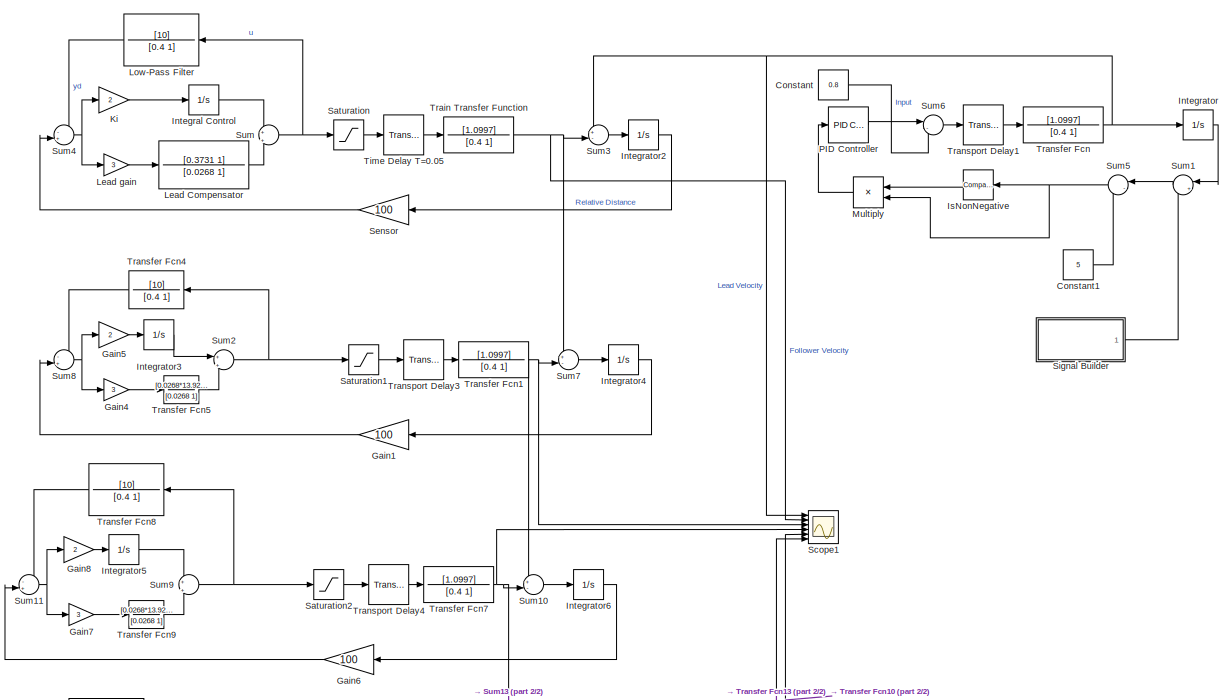
[diagram: root canvas - part 1/2, full width, top band]
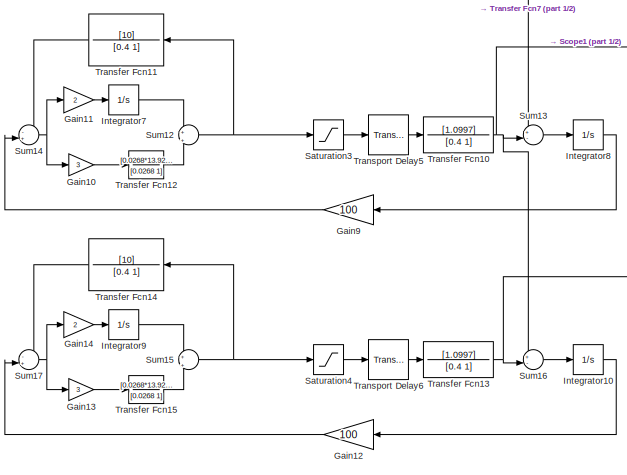
[diagram: root canvas - part 2/2, bottom left region]
MODEL slx_5588f0d19503
KIND model
CONFIG AbsTol = auto
CONFIG EnableMultiTasking = off
CONFIG FixedStep = 1e-6
CONFIG MaxStep = auto
CONFIG MinStep = auto
CONFIG RelTol = 1e-3
CONFIG SampleTimeConstraint = Unconstrained
CONFIG Solver = VariableStepAuto
CONFIG SolverName = VariableStepAuto
CONFIG StartTime = 0.0
CONFIG StopTime = 10
BLOCK [Constant] Constant
  Value = 0.8
BLOCK [Constant] Constant1
  Value = 5
BLOCK [Gain] Gain1
  Gain = 100
  OutDataTypeStr = Inherit: Inherit via internal rule
  ParamDataTypeStr = Inherit: Inherit via internal rule
  SaturateOnIntegerOverflow = off
BLOCK [Gain] Gain10
  Gain = 3
  OutDataTypeStr = Inherit: Inherit via internal rule
  ParamDataTypeStr = Inherit: Inherit via internal rule
  SaturateOnIntegerOverflow = off
BLOCK [Gain] Gain11
  Gain = 2
  OutDataTypeStr = Inherit: Inherit via internal rule
  ParamDataTypeStr = Inherit: Inherit via internal rule
  SaturateOnIntegerOverflow = off
BLOCK [Gain] Gain12
  Gain = 100
  OutDataTypeStr = Inherit: Inherit via internal rule
  ParamDataTypeStr = Inherit: Inherit via internal rule
  SaturateOnIntegerOverflow = off
BLOCK [Gain] Gain13
  Gain = 3
  OutDataTypeStr = Inherit: Inherit via internal rule
  ParamDataTypeStr = Inherit: Inherit via internal rule
  SaturateOnIntegerOverflow = off
BLOCK [Gain] Gain14
  Gain = 2
  OutDataTypeStr = Inherit: Inherit via internal rule
  ParamDataTypeStr = Inherit: Inherit via internal rule
  SaturateOnIntegerOverflow = off
BLOCK [Gain] Gain4
  Gain = 3
  OutDataTypeStr = Inherit: Inherit via internal rule
  ParamDataTypeStr = Inherit: Inherit via internal rule
  SaturateOnIntegerOverflow = off
BLOCK [Gain] Gain5
  Gain = 2
  OutDataTypeStr = Inherit: Inherit via internal rule
  ParamDataTypeStr = Inherit: Inherit via internal rule
  SaturateOnIntegerOverflow = off
BLOCK [Gain] Gain6
  Gain = 100
  OutDataTypeStr = Inherit: Inherit via internal rule
  ParamDataTypeStr = Inherit: Inherit via internal rule
  SaturateOnIntegerOverflow = off
BLOCK [Gain] Gain7
  Gain = 3
  OutDataTypeStr = Inherit: Inherit via internal rule
  ParamDataTypeStr = Inherit: Inherit via internal rule
  SaturateOnIntegerOverflow = off
BLOCK [Gain] Gain8
  Gain = 2
  OutDataTypeStr = Inherit: Inherit via internal rule
  ParamDataTypeStr = Inherit: Inherit via internal rule
  SaturateOnIntegerOverflow = off
BLOCK [Gain] Gain9
  Gain = 100
  OutDataTypeStr = Inherit: Inherit via internal rule
  ParamDataTypeStr = Inherit: Inherit via internal rule
  SaturateOnIntegerOverflow = off
BLOCK [Integrator] Integral Control
  Ports = [1, 1]
BLOCK [Integrator] Integrator
  Ports = [1, 1]
BLOCK [Integrator] Integrator10
  Ports = [1, 1]
BLOCK [Integrator] Integrator2
  Ports = [1, 1]
BLOCK [Integrator] Integrator3
  Ports = [1, 1]
BLOCK [Integrator] Integrator4
  Ports = [1, 1]
BLOCK [Integrator] Integrator5
  Ports = [1, 1]
BLOCK [Integrator] Integrator6
  Ports = [1, 1]
BLOCK [Integrator] Integrator7
  Ports = [1, 1]
BLOCK [Integrator] Integrator8
  Ports = [1, 1]
BLOCK [Integrator] Integrator9
  Ports = [1, 1]
BLOCK [Reference] IsNonNegative  REF=simulink/Logic and Bit
Operations/Compare
To Zero
  Ports = [1, 1]
  SourceBlock = simulink/Logic and Bit\nOperations/Compare\nTo Zero
  SourceProductBaseCode = SL
  SourceProductName = Simulink
  SourceType = Compare To Zero
BLOCK [Gain] Ki
  Gain = 2
  OutDataTypeStr = Inherit: Inherit via internal rule
  ParamDataTypeStr = Inherit: Inherit via internal rule
  SaturateOnIntegerOverflow = off
BLOCK [TransferFcn] Lead Compensator
  Denominator = [0.0268 1]
  Numerator = [0.3731 1]
BLOCK [Gain] Lead gain
  Gain = 3
  OutDataTypeStr = Inherit: Inherit via internal rule
  ParamDataTypeStr = Inherit: Inherit via internal rule
  SaturateOnIntegerOverflow = off
BLOCK [TransferFcn] Low-Pass Filter
  Denominator = [0.4 1]
  Numerator = [10]
BLOCK [Product] Multiply
  InputSameDT = off
  OutDataTypeStr = Inherit: Inherit via internal rule
  Ports = [2, 1]
  RndMeth = Floor
  SaturateOnIntegerOverflow = off
BLOCK [Reference] PID Controller  REF=simulink/Continuous/PID Controller
  Ports = [1, 1]
  SourceBlock = simulink/Continuous/PID Controller
  SourceProductBaseCode = SL
  SourceProductName = Simulink
  SourceType = PID 1dof
BLOCK [Saturate] Saturation
  InputPortMap = u0
  LowerLimit = 0
  Ports = [1, 1]
  UpperLimit = 1
BLOCK [Saturate] Saturation1
  InputPortMap = u0
  LowerLimit = 0
  Ports = [1, 1]
  UpperLimit = 1
BLOCK [Saturate] Saturation2
  InputPortMap = u0
  LowerLimit = 0
  Ports = [1, 1]
  UpperLimit = 1
BLOCK [Saturate] Saturation3
  InputPortMap = u0
  LowerLimit = 0
  Ports = [1, 1]
  UpperLimit = 1
BLOCK [Saturate] Saturation4
  InputPortMap = u0
  LowerLimit = 0
  Ports = [1, 1]
  UpperLimit = 1
BLOCK [Scope] Scope1
  Floating = off
  NumInputPorts = 6
  Ports = [6]
  ScopeSpecificationString = Simulink.scopes.TimeScopeBlockCfg('CurrentConfiguration', extmgr.ConfigurationSet(extmgr.Configuration('Core','General UI',true),extmgr.Configuration('Core','Source UI',true),extmgr.Configuration('Sources','WiredSimulink',true,'DataLoggingVariableName','ScopeData1','DataLogging',true),extmgr.Configuration('Visuals','Time Domain',true,'SerializedDisplays',{struct('MinYLimReal','-0.10997','MaxYLimRe...<+1504ch>
BLOCK [Gain] Sensor
  Gain = 100
  OutDataTypeStr = Inherit: Inherit via internal rule
  ParamDataTypeStr = Inherit: Inherit via internal rule
  SaturateOnIntegerOverflow = off
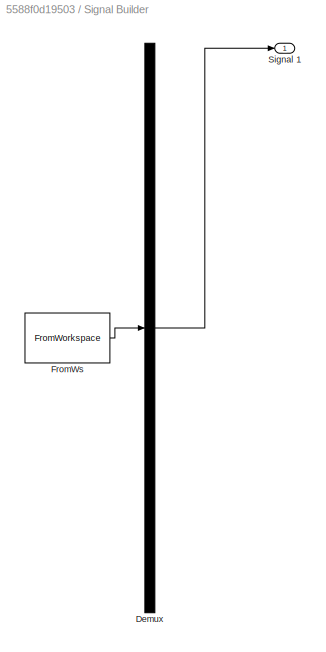
BLOCK [SubSystem] Signal Builder
  ClipboardFcn = sigbuilder_block('clipboard');
  CloseFcn = sigbuilder_block('close');
  ContinueFcn = sigbuilder_block('continue');
  CopyFcn = sigbuilder_block('copy');
  DeleteFcn = sigbuilder_block('delete');
  LoadFcn = sigbuilder_block('load',[242.25 90 550.5 359.25 ]);
  MaskHideContents = on
  ModelCloseFcn = sigbuilder_block('modelClose');
  NameChangeFcn = sigbuilder_block('namechange');
  OpenFcn = sigbuilder_block('open',[242.25 90 550.5 359.25 ]);
  PauseFcn = sigbuilder_block('pause');
  Ports = [0, 1]
  PreSaveFcn = sigbuilder_block('preSave');
  RequestExecContextInheritance = off
  StartFcn = sigbuilder_block('start');
  StopFcn = sigbuilder_block('stop');
  Tag = STV Subsys
BLOCK [Demux] Signal Builder/Demux
  Outputs = 1
  Ports = [1, 1]
  Tag = STV Demux
BLOCK [FromWorkspace] Signal Builder/FromWs
  SampleTime = 0
  Tag = STV FromWs
  VariableName = tuvar
  ZeroCross = on
BLOCK [Outport] Signal Builder/Signal 1
  IconDisplay = Port number
  Tag = STV Outport
BLOCK [Sum] Sum
  IconShape = round
  InputSameDT = off
  Inputs = +|+
  OutDataTypeStr = Inherit: Inherit via internal rule
  Ports = [2, 1]
  SaturateOnIntegerOverflow = off
BLOCK [Sum] Sum1
  IconShape = round
  InputSameDT = off
  Inputs = |++
  OutDataTypeStr = Inherit: Inherit via internal rule
  Ports = [2, 1]
  SaturateOnIntegerOverflow = off
BLOCK [Sum] Sum10
  IconShape = round
  InputSameDT = off
  Inputs = +-|
  OutDataTypeStr = Inherit: Inherit via internal rule
  Ports = [2, 1]
  SaturateOnIntegerOverflow = off
BLOCK [Sum] Sum11
  IconShape = round
  InputSameDT = off
  Inputs = -+|
  OutDataTypeStr = Inherit: Inherit via internal rule
  Ports = [2, 1]
  SaturateOnIntegerOverflow = off
BLOCK [Sum] Sum12
  IconShape = round
  InputSameDT = off
  Inputs = +|+
  OutDataTypeStr = Inherit: Inherit via internal rule
  Ports = [2, 1]
  SaturateOnIntegerOverflow = off
BLOCK [Sum] Sum13
  IconShape = round
  InputSameDT = off
  Inputs = +-|
  OutDataTypeStr = Inherit: Inherit via internal rule
  Ports = [2, 1]
  SaturateOnIntegerOverflow = off
BLOCK [Sum] Sum14
  IconShape = round
  InputSameDT = off
  Inputs = -+|
  OutDataTypeStr = Inherit: Inherit via internal rule
  Ports = [2, 1]
  SaturateOnIntegerOverflow = off
BLOCK [Sum] Sum15
  IconShape = round
  InputSameDT = off
  Inputs = +|+
  OutDataTypeStr = Inherit: Inherit via internal rule
  Ports = [2, 1]
  SaturateOnIntegerOverflow = off
BLOCK [Sum] Sum16
  IconShape = round
  InputSameDT = off
  Inputs = +-|
  OutDataTypeStr = Inherit: Inherit via internal rule
  Ports = [2, 1]
  SaturateOnIntegerOverflow = off
BLOCK [Sum] Sum17
  IconShape = round
  InputSameDT = off
  Inputs = -+|
  OutDataTypeStr = Inherit: Inherit via internal rule
  Ports = [2, 1]
  SaturateOnIntegerOverflow = off
BLOCK [Sum] Sum2
  IconShape = round
  InputSameDT = off
  Inputs = +|+
  OutDataTypeStr = Inherit: Inherit via internal rule
  Ports = [2, 1]
  SaturateOnIntegerOverflow = off
BLOCK [Sum] Sum3
  IconShape = round
  InputSameDT = off
  Inputs = +-|
  OutDataTypeStr = Inherit: Inherit via internal rule
  Ports = [2, 1]
  SaturateOnIntegerOverflow = off
BLOCK [Sum] Sum4
  IconShape = round
  InputSameDT = off
  Inputs = -+|
  OutDataTypeStr = Inherit: Inherit via internal rule
  Ports = [2, 1]
  SaturateOnIntegerOverflow = off
BLOCK [Sum] Sum5
  IconShape = round
  InputSameDT = off
  Inputs = |-+
  OutDataTypeStr = Inherit: Inherit via internal rule
  Ports = [2, 1]
  SaturateOnIntegerOverflow = off
BLOCK [Sum] Sum6
  IconShape = round
  InputSameDT = off
  Inputs = |-+
  OutDataTypeStr = Inherit: Inherit via internal rule
  Ports = [2, 1]
  SaturateOnIntegerOverflow = off
BLOCK [Sum] Sum7
  IconShape = round
  InputSameDT = off
  Inputs = +-|
  OutDataTypeStr = Inherit: Inherit via internal rule
  Ports = [2, 1]
  SaturateOnIntegerOverflow = off
BLOCK [Sum] Sum8
  IconShape = round
  InputSameDT = off
  Inputs = -+|
  OutDataTypeStr = Inherit: Inherit via internal rule
  Ports = [2, 1]
  SaturateOnIntegerOverflow = off
BLOCK [Sum] Sum9
  IconShape = round
  InputSameDT = off
  Inputs = +|+
  OutDataTypeStr = Inherit: Inherit via internal rule
  Ports = [2, 1]
  SaturateOnIntegerOverflow = off
BLOCK [TransportDelay] Time Delay T=0.05
  DelayTime = 0.05
  PadeOrder = 3
  Ports = [1, 1]
BLOCK [TransferFcn] Train Transfer Function
  Denominator = [0.4 1]
  Numerator = [1.0997]
BLOCK [TransferFcn] Transfer Fcn
  Denominator = [0.4 1]
  Numerator = [1.0997]
BLOCK [TransferFcn] Transfer Fcn1
  Denominator = [0.4 1]
  Numerator = [1.0997]
BLOCK [TransferFcn] Transfer Fcn10
  Denominator = [0.4 1]
  Numerator = [1.0997]
BLOCK [TransferFcn] Transfer Fcn11
  Denominator = [0.4 1]
  Numerator = [10]
BLOCK [TransferFcn] Transfer Fcn12
  Denominator = [0.0268 1]
  Numerator = [0.0268*13.92 1]
BLOCK [TransferFcn] Transfer Fcn13
  Denominator = [0.4 1]
  Numerator = [1.0997]
BLOCK [TransferFcn] Transfer Fcn14
  Denominator = [0.4 1]
  Numerator = [10]
BLOCK [TransferFcn] Transfer Fcn15
  Denominator = [0.0268 1]
  Numerator = [0.0268*13.92 1]
BLOCK [TransferFcn] Transfer Fcn4
  Denominator = [0.4 1]
  Numerator = [10]
BLOCK [TransferFcn] Transfer Fcn5
  Denominator = [0.0268 1]
  Numerator = [0.0268*13.92 1]
BLOCK [TransferFcn] Transfer Fcn7
  Denominator = [0.4 1]
  Numerator = [1.0997]
BLOCK [TransferFcn] Transfer Fcn8
  Denominator = [0.4 1]
  Numerator = [10]
BLOCK [TransferFcn] Transfer Fcn9
  Denominator = [0.0268 1]
  Numerator = [0.0268*13.92 1]
BLOCK [TransportDelay] Transport Delay1
  DelayTime = 0.05
  PadeOrder = 3
  Ports = [1, 1]
BLOCK [TransportDelay] Transport Delay3
  DelayTime = 0.05
  PadeOrder = 3
  Ports = [1, 1]
BLOCK [TransportDelay] Transport Delay4
  DelayTime = 0.05
  PadeOrder = 3
  Ports = [1, 1]
BLOCK [TransportDelay] Transport Delay5
  DelayTime = 0.05
  PadeOrder = 3
  Ports = [1, 1]
BLOCK [TransportDelay] Transport Delay6
  DelayTime = 0.05
  PadeOrder = 3
  Ports = [1, 1]
LINE Constant1:1 -> Sum5:2
LINE Constant:1 -> Sum6:2
LINE Gain10:1 -> Transfer Fcn12:1
LINE Gain11:1 -> Integrator7:1
LINE Gain12:1 -> Sum17:2
LINE Gain13:1 -> Transfer Fcn15:1
LINE Gain14:1 -> Integrator9:1
LINE Gain1:1 -> Sum8:2
LINE Gain4:1 -> Transfer Fcn5:1
LINE Gain5:1 -> Integrator3:1
LINE Gain6:1 -> Sum11:2
LINE Gain7:1 -> Transfer Fcn9:1
LINE Gain8:1 -> Integrator5:1
LINE Gain9:1 -> Sum14:2
LINE Integral Control:1 -> Sum:1
LINE Integrator10:1 -> Gain12:1
LINE Integrator2:1 -> Sensor:1
LINE Integrator3:1 -> Sum2:1
LINE Integrator4:1 -> Gain1:1
LINE Integrator5:1 -> Sum9:1
LINE Integrator6:1 -> Gain6:1
LINE Integrator7:1 -> Sum12:1
LINE Integrator8:1 -> Gain9:1
LINE Integrator9:1 -> Sum15:1
LINE Integrator:1 -> Sum1:1
LINE IsNonNegative:1 -> Multiply:1
LINE Ki:1 -> Integral Control:1
LINE Lead Compensator:1 -> Sum:2
LINE Lead gain:1 -> Lead Compensator:1
LINE Low-Pass Filter:1 -> Sum4:1
LINE Multiply:1 -> PID Controller:1
LINE PID Controller:1 -> Sum6:1
LINE Saturation1:1 -> Transport Delay3:1
LINE Saturation2:1 -> Transport Delay4:1
LINE Saturation3:1 -> Transport Delay5:1
LINE Saturation4:1 -> Transport Delay6:1
LINE Saturation:1 -> Time Delay T=0.05:1
LINE Sensor:1 -> Sum4:2
LINE Signal Builder:1 -> Sum1:2
LINE Sum10:1 -> Integrator6:1
NET Sum11:1 -> Gain7:1, Gain8:1
NET Sum12:1 -> Saturation3:1, Transfer Fcn11:1
LINE Sum13:1 -> Integrator8:1
NET Sum14:1 -> Gain10:1, Gain11:1
NET Sum15:1 -> Saturation4:1, Transfer Fcn14:1
LINE Sum16:1 -> Integrator10:1
NET Sum17:1 -> Gain13:1, Gain14:1
LINE Sum1:1 -> Sum5:1
NET Sum2:1 -> Saturation1:1, Transfer Fcn4:1
LINE Sum3:1 -> Integrator2:1
NET Sum4:1 -> Ki:1, Lead gain:1
NET Sum5:1 -> IsNonNegative:1, Multiply:2
LINE Sum6:1 -> Transport Delay1:1
LINE Sum7:1 -> Integrator4:1
NET Sum8:1 -> Gain4:1, Gain5:1
NET Sum9:1 -> Saturation2:1, Transfer Fcn8:1
NET Sum:1 -> Low-Pass Filter:1, Saturation:1
LINE Time Delay T=0.05:1 -> Train Transfer Function:1
NET Train Transfer Function:1 -> Scope1:2, Sum3:2, Sum7:1
NET Transfer Fcn10:1 -> Scope1:5, Sum13:2, Sum16:1
LINE Transfer Fcn11:1 -> Sum14:1
LINE Transfer Fcn12:1 -> Sum12:2
NET Transfer Fcn13:1 -> Scope1:6, Sum16:2
LINE Transfer Fcn14:1 -> Sum17:1
LINE Transfer Fcn15:1 -> Sum15:2
NET Transfer Fcn1:1 -> Scope1:3, Sum10:1, Sum7:2
LINE Transfer Fcn4:1 -> Sum8:1
LINE Transfer Fcn5:1 -> Sum2:2
NET Transfer Fcn7:1 -> Scope1:4, Sum10:2, Sum13:1
LINE Transfer Fcn8:1 -> Sum11:1
LINE Transfer Fcn9:1 -> Sum9:2
NET Transfer Fcn:1 -> Integrator:1, Scope1:1, Sum3:1
LINE Transport Delay1:1 -> Transfer Fcn:1
LINE Transport Delay3:1 -> Transfer Fcn1:1
LINE Transport Delay4:1 -> Transfer Fcn7:1
LINE Transport Delay5:1 -> Transfer Fcn10:1
LINE Transport Delay6:1 -> Transfer Fcn13:1
note: NET lines group one-source signal fan-out (src -> all destinations, sorted); 1:1 wires keep LINE
